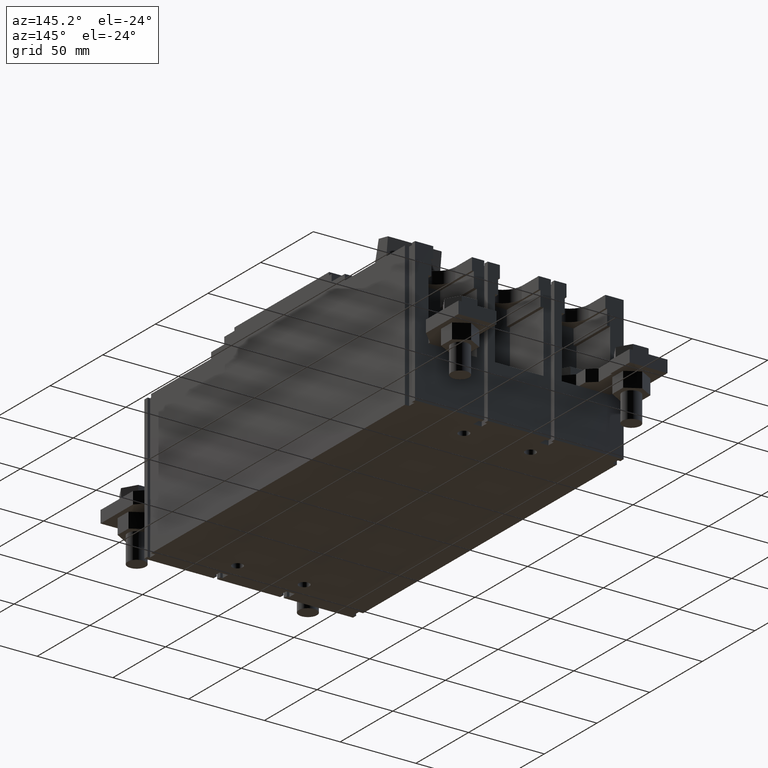
[diagram: clean part render]
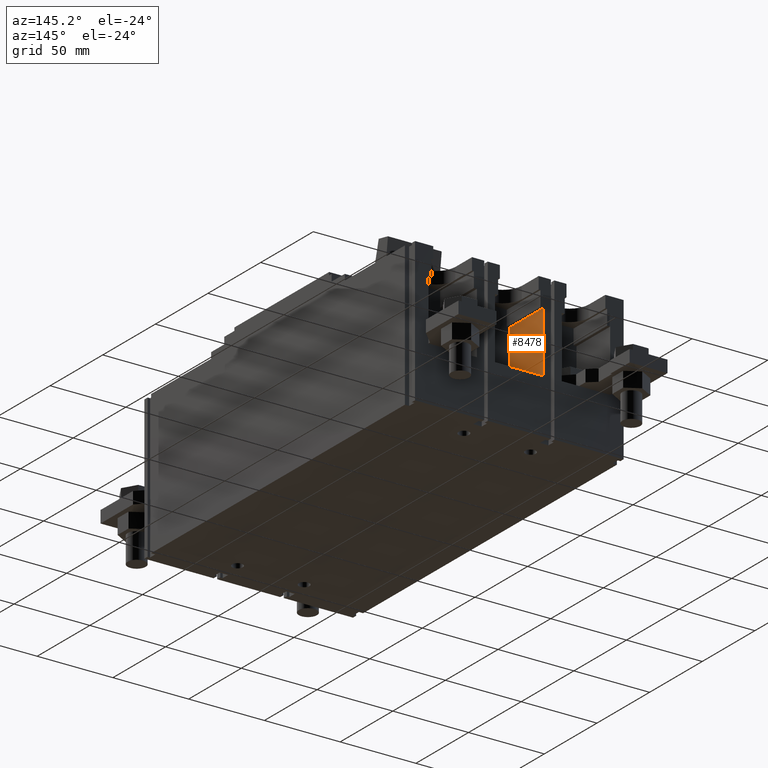
[diagram: same view with one face highlighted and labeled with its STEP entity id]
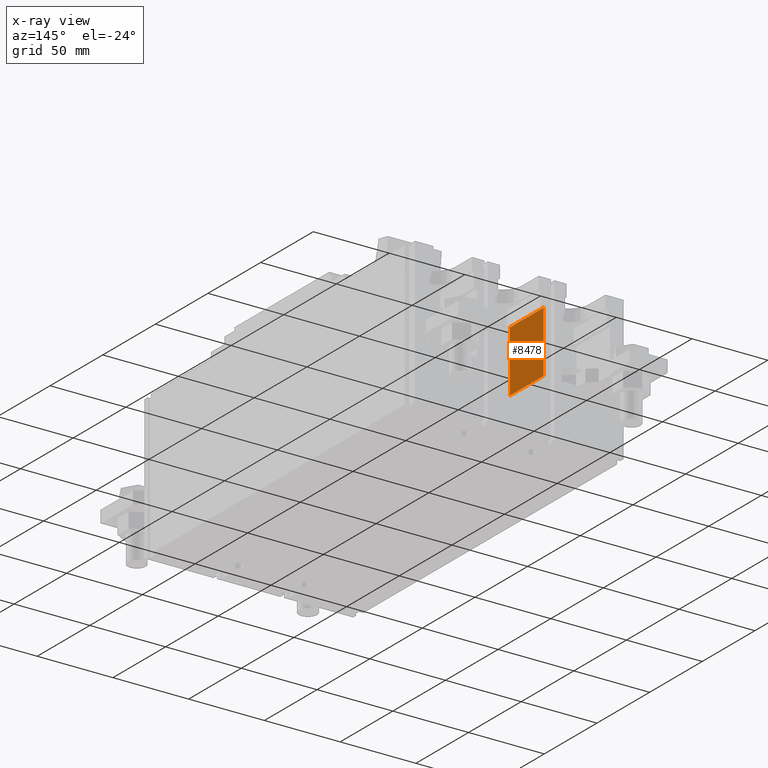
[diagram: x-ray of the same camera — body ghosted, the highlighted face saturated]
A machine part, auxiliary view. The second image highlights one B-rep face of the part: STEP entity #8478.
The next image is the same camera in x-ray: the body ghosted, the highlighted face saturated — about 0% of this face is hidden behind the body in this view.
In plain terms, the highlighted planar face has unit normal (-1, 0, 0).
Its self-contained STEP definition (entity closure, byte-faithful):
#443 = VERTEX_POINT ( 'NONE', #3103 ) ;
#1811 = VERTEX_POINT ( 'NONE', #10898 ) ;
#1866 = VECTOR ( 'NONE', #10775, 39.37007874015748143 ) ;
#1942 = DIRECTION ( 'NONE',  ( 0.0000000000000000000, 1.000000000000000000, -0.0000000000000000000 ) ) ;
#2400 = CARTESIAN_POINT ( 'NONE',  ( -0.6299212598425196763, 0.0000000000000000000, 1.417322834645669438 ) ) ;
#3007 = DIRECTION ( 'NONE',  ( 0.0000000000000000000, 0.0000000000000000000, 1.000000000000000000 ) ) ;
#3103 = CARTESIAN_POINT ( 'NONE',  ( -0.6299212598425196763, 8.031496062992125928, 1.417322834645669438 ) ) ;
#4009 = DIRECTION ( 'NONE',  ( 0.0000000000000000000, -1.000000000000000000, -0.0000000000000000000 ) ) ;
#4700 = FACE_OUTER_BOUND ( 'NONE', #10986, .T. ) ;
#5975 = LINE ( 'NONE', #6235, #8683 ) ;
#6034 = DIRECTION ( 'NONE',  ( 0.0000000000000000000, 0.0000000000000000000, 1.000000000000000000 ) ) ;
#6067 = VECTOR ( 'NONE', #4009, 39.37007874015748143 ) ;
#6235 = CARTESIAN_POINT ( 'NONE',  ( -0.6299212598425196763, 9.291338582677166613, 3.011811023622047223 ) ) ;
#7614 = EDGE_CURVE ( 'NONE', #11039, #1811, #5975, .T. ) ;
#7879 = ORIENTED_EDGE ( 'NONE', *, *, #14422, .F. ) ;
#8478 = ADVANCED_FACE ( 'NONE', ( #4700 ), #17027, .F. ) ;
#8683 = VECTOR ( 'NONE', #1942, 39.37007874015748143 ) ;
#8754 = ORIENTED_EDGE ( 'NONE', *, *, #7614, .F. ) ;
#9761 = CARTESIAN_POINT ( 'NONE',  ( -0.6299212598425196763, 9.291338582677166613, 1.417322834645669438 ) ) ;
#10613 = EDGE_CURVE ( 'NONE', #1811, #12572, #14037, .T. ) ;
#10775 = DIRECTION ( 'NONE',  ( -0.0000000000000000000, 0.0000000000000000000, -1.000000000000000000 ) ) ;
#10898 = CARTESIAN_POINT ( 'NONE',  ( -0.6299212598425196763, 9.291338582677166613, 3.011811023622047223 ) ) ;
#10986 = EDGE_LOOP ( 'NONE', ( #15396, #8754, #17208, #7879 ) ) ;
#11039 = VERTEX_POINT ( 'NONE', #13184 ) ;
#11778 = CARTESIAN_POINT ( 'NONE',  ( -0.6299212598425196763, 9.291338582677166613, 3.011811023622047223 ) ) ;
#12261 = CARTESIAN_POINT ( 'NONE',  ( -0.6299212598425196763, 9.291338582677166613, 0.0000000000000000000 ) ) ;
#12572 = VERTEX_POINT ( 'NONE', #9761 ) ;
#13184 = CARTESIAN_POINT ( 'NONE',  ( -0.6299212598425196763, 8.031496062992125928, 3.011811023622047223 ) ) ;
#13727 = LINE ( 'NONE', #2400, #6067 ) ;
#14037 = LINE ( 'NONE', #12261, #1866 ) ;
#14422 = EDGE_CURVE ( 'NONE', #12572, #443, #13727, .T. ) ;
#14555 = AXIS2_PLACEMENT_3D ( 'NONE', #11778, #18836, #3007 ) ;
#14748 = CARTESIAN_POINT ( 'NONE',  ( -0.6299212598425196763, 8.031496062992125928, 3.011811023622047223 ) ) ;
#15038 = VECTOR ( 'NONE', #6034, 39.37007874015748143 ) ;
#15396 = ORIENTED_EDGE ( 'NONE', *, *, #10613, .F. ) ;
#16543 = EDGE_CURVE ( 'NONE', #443, #11039, #18464, .T. ) ;
#17027 = PLANE ( 'NONE',  #14555 ) ;
#17208 = ORIENTED_EDGE ( 'NONE', *, *, #16543, .F. ) ;
#18464 = LINE ( 'NONE', #14748, #15038 ) ;
#18836 = DIRECTION ( 'NONE',  ( -1.000000000000000000, 0.0000000000000000000, 0.0000000000000000000 ) ) ;